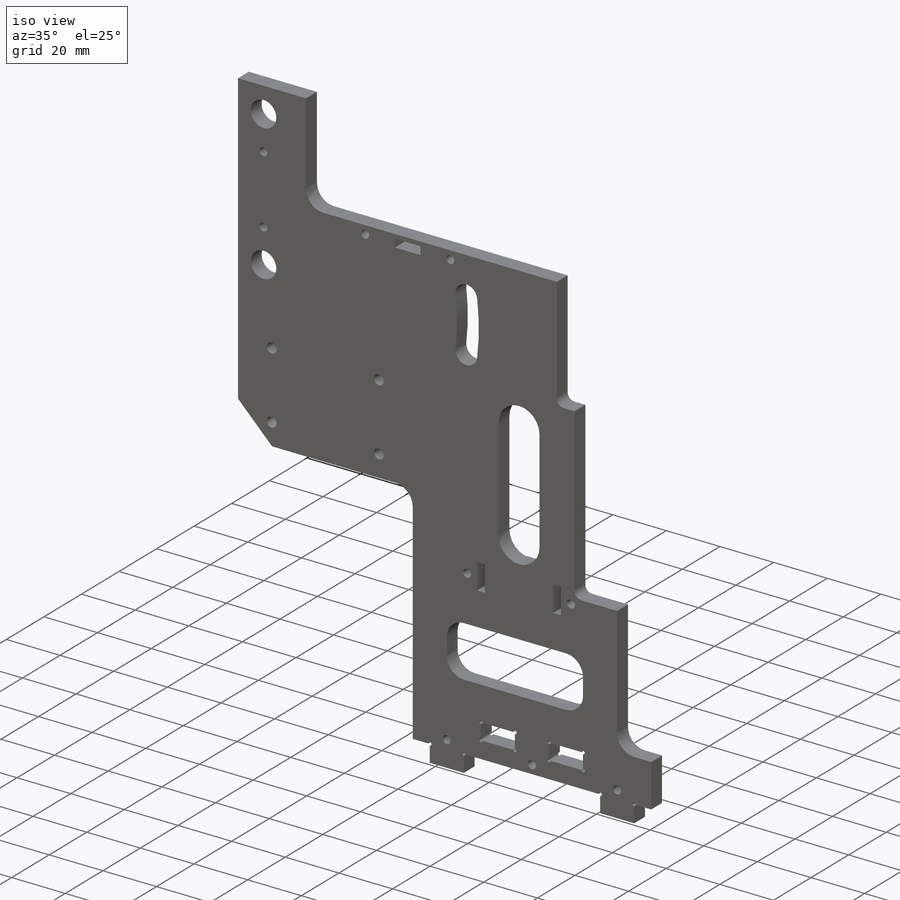
[diagram: iso view]
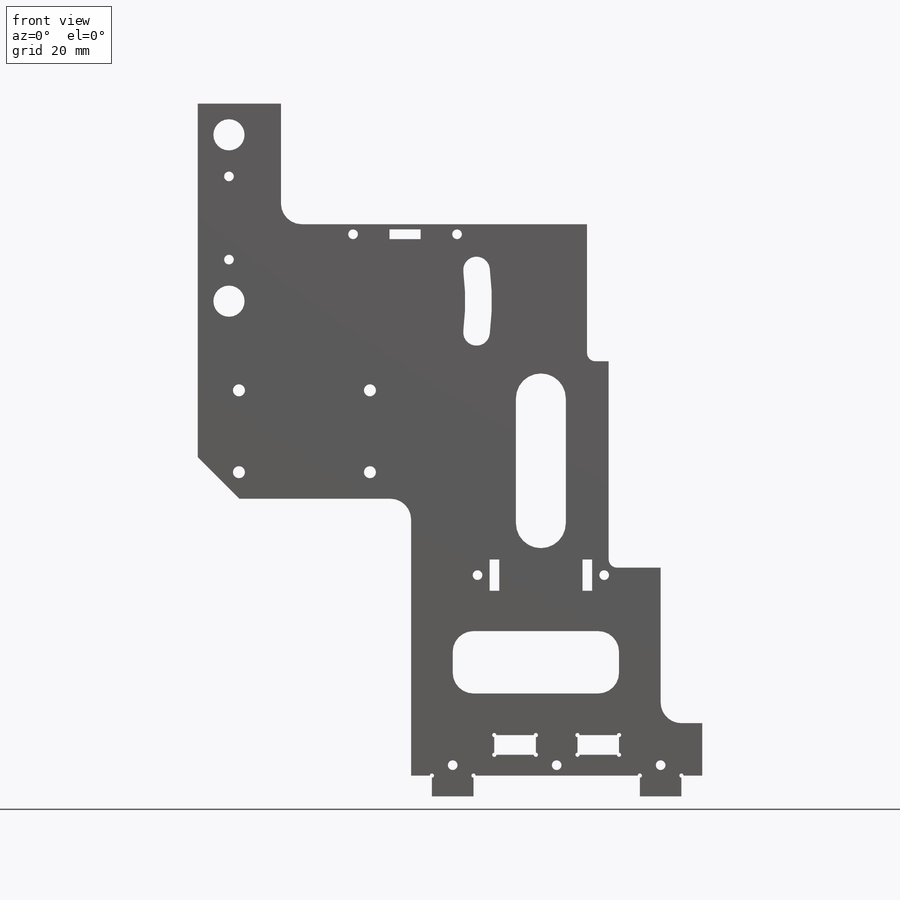
[diagram: front view]
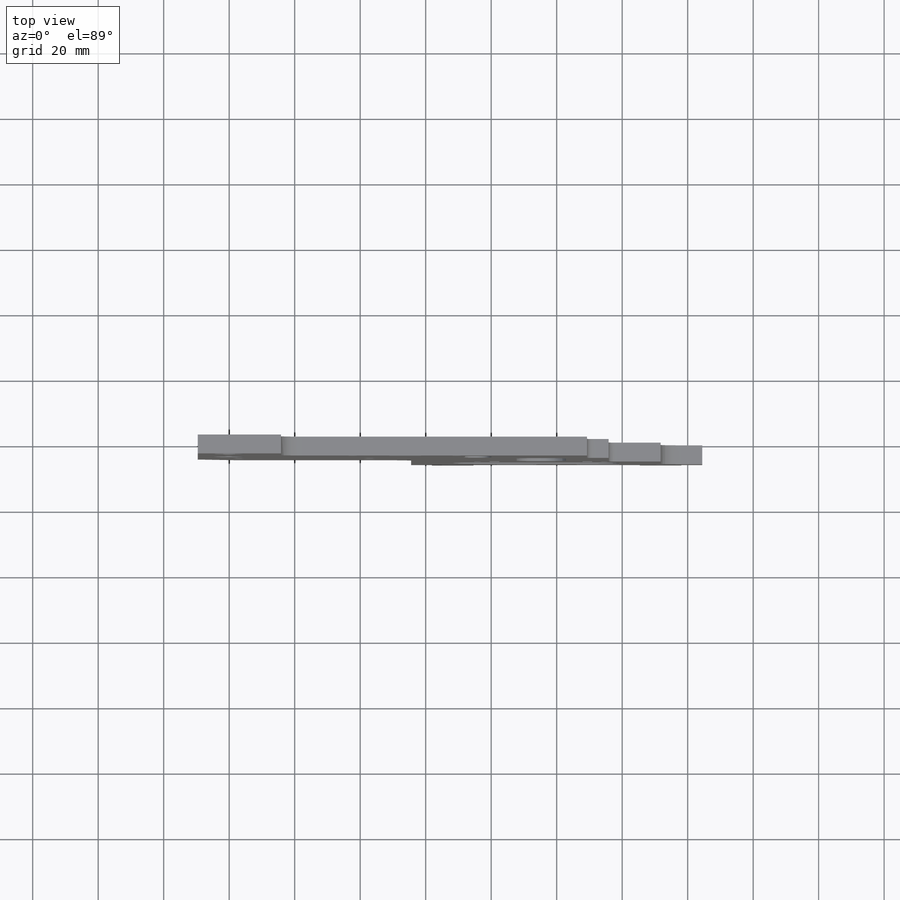
[diagram: top view]
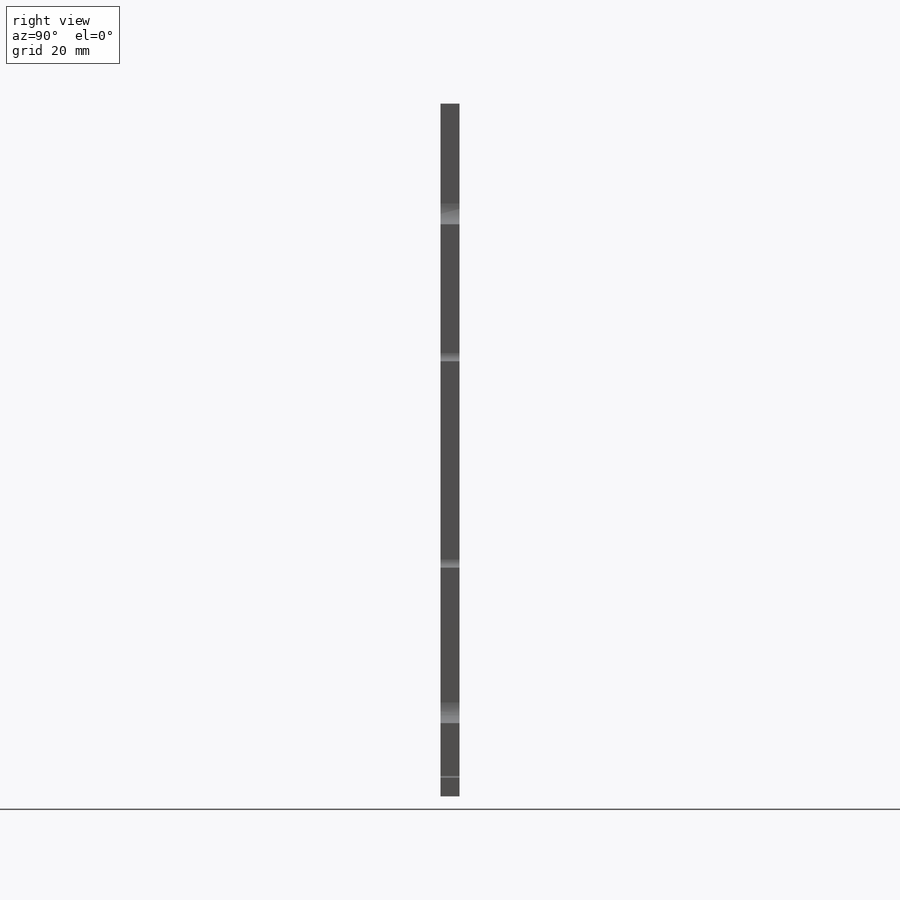
[diagram: right view]
SOLIDWORKS PART (.sldprt)
format: sldprt  version: not decoded by parser v0  size: 1,506,304 bytes
history: native  units: mm
features: sketch x23, cut_extrude x11, fillet x6, hole x4, chamfer x3, extrude x2, material x1 + 1 further entry (+12 scaffold rows collapsed)
feature tree (63):
  scaffold x12  (default folders/planes/origin — collapsed)
  material  "Acrylic (Medium-high impact)"
  sketch  "Sketch1"  dims[c1.D19=25.4mm c1.D20=1.27mm c1.D21=0.635mm c1.D13=9.525mm c2.D21=~40.566542mm c2.D1=6.35mm c2.D2=6.35mm c2.D3=12.7mm c2.D4=12.7mm c2.D5=50.8mm c2.D6=25.4mm c2.D7=25.4mm c2.D8=25.4mm c2.D9=31.75mm c2.D10=25.4mm c2.D11=25.4mm c2.D12=38.1mm c2.D13=38.1mm c2.D14=42.0mm c2.D15=42.0mm c2.D16=22.352mm c3.D6=38.1mm c3.D17=19.05mm c4.D6=6.35mm c4.D18=6.35mm c4.D21=25.4mm c4.D19=57.15mm c5.D6=6.35mm c5.D19=12.7mm c5.D21=6.0198mm c5.D22=3.175mm c5.D23=12.7mm c5.D24=6.35mm c5.D25=19.05mm c5.D26=6.35mm c5.D3=12.7mm c6.D6=6.35mm c6.D18=6.35mm c6.D20=6.0198mm c6.D19=6.35mm c6.D21=28.575mm c6.D27=12.7mm c6.D28=12.7mm c6.D29=25.4mm c6.D17=127.0mm c6.D30=6.35mm c6.D31=107.8738mm c6.D32=152.4mm c7.D17=195.326mm c7.D21=3.175mm c7.D22=50.8mm c8.D21=9.525mm c8.D23=9.525mm c8.D24=9.525mm c8.D25=50.8mm]
  extrude  "Boss-Extrude1"  Depth=5.7658mm
  sketch  "Sketch10"  dims[D1=1.27mm]
  sketch  "Sketch13"  dims[D1=1.27mm]
  cut_extrude  "Cut-Extrude2"  [1 undecoded]
  "Sketch-Pattern1"
  chamfer  "Chamfer1"  Distance=50.8mm Angle=45deg
  sketch  "Sketch5"  dims[D1=6.35mm D2=6.35mm D3=0.254mm]
  hole  "#4 Clearance Hole1"  Diameter=2.9464mm Depth=6.35mm
  sketch  "Sketch7"
  sketch  "Sketch6"  dims[hole-wizard template sketch: 50 standard entries collapsed; hole parameters above]
  hole  "3/8 (0.375) Diameter Hole1"  Diameter=9.525mm Depth=6.35mm
  sketch  "Sketch23"
  sketch  "Sketch22"  dims[hole-wizard template sketch: 47 standard entries collapsed; hole parameters kept: c15.Hole Depth=6.35mm c15.D3=~14.816244mm c15.Drill Angle=118.0deg]
  sketch  "Sketch24"  dims[D1=12.7mm]
  cut_extrude  "Cut-Extrude3"  [1 undecoded]
  fillet  "Fillet3"  Radius=6.35mm
  sketch  "Sketch25"  dims[c1.D1=203.2mm c1.D2=101.6mm c1.D3=101.6mm c2.D1=3.683mm c2.D4=3.683mm c2.D5=9.525mm c2.D3=4.064mm c3.D4=3.683mm c3.D5=101.6mm c3.D6=76.2mm c3.D1=114.3mm c3.D3=~10.35304mm c4.D1=6.35mm c4.D2=~103.411232mm c5.D1=~20.255382mm c5.D5=~10.35304mm c5.D6=~10.35304mm c6.D1=~10.35304mm c6.D2=~10.35304mm c6.D7=203.2mm c6.D8=50.8mm]
  cut_extrude  "Cut-Extrude4"  [1 undecoded]
  sketch  "Sketch26"  dims[D4=7.366mm D1=25.4mm D2=2.9591mm D3=9.525mm D5=4.826mm D6=61.214mm]
  cut_extrude  "Cut-Extrude5"  [1 undecoded]
  sketch  "Sketch29"  dims[D1=36.83mm D2=65.024mm]
  cut_extrude  "Cut-Extrude6"  [1 undecoded]
  fillet  "Fillet5"  Radius=6.35mm
  sketch  "Sketch30"  dims[c1.D1=~88.299103mm c2.D1=45.0deg c3.D1=63.5mm c3.D2=57.15mm c3.D3=49.53mm c4.D1=63.5mm c4.D4=50.8mm]
  extrude  "Boss-Extrude2"  [1 undecoded]
  fillet  "Fillet6"  Radius=6.35mm
  sketch  "Sketch31"  dims[D2=50.8mm D3=15.24mm D5=2.54mm D1=15.8623mm D4=6.35mm D6=38.1mm]
  sketch  "Sketch32"  dims[D1=9.525mm D2=2.9591mm D3=6.35mm D4=~0.79375mm]
  cut_extrude  "Cut-Extrude9"  [1 undecoded]
  hole  "#6 Clearance Hole1"  Diameter=3.6576mm Depth=5.842mm
  sketch  "Sketch34"  dims[c1.D1=40.0mm c1.D2=25.0mm c1.D3=25.0mm c1.D4=~18.829827mm c1.D5=25.0mm c2.D3=3.0mm]
  sketch  "Sketch33"  dims[hole-wizard template sketch: 47 standard entries collapsed; hole parameters kept: c15.Hole Depth=5.842mm c15.D3=~14.816244mm c15.Drill Angle=118.0deg]
  cut_extrude  "Cut-Extrude10"  [1 undecoded]
  chamfer  "Chamfer2"  Distance=19.05mm Angle=45deg
  chamfer  "Chamfer3"  Distance=12.7mm Angle=45deg
  sketch  "Sketch35"  dims[c1.D1=63.5mm c1.D2=6.35mm c1.D3=15.875mm c1.D4=76.2mm c1.D5=50.8mm c1.D6=50.8mm c2.D5=~7.388382mm]
  cut_extrude  "Cut-Extrude11"  [1 undecoded]
  sketch  "Sketch36"  dims[D1=25.4mm]
  cut_extrude  "Cut-Extrude12"  [1 undecoded]
  fillet  "Fillet7"  Radius=2.54mm
  fillet  "Fillet8"  Radius=6.35mm
  sketch  "Sketch37"  dims[c1.D1=~6.393198mm c1.D2=~16.836039mm c2.D1=9.525mm c2.D2=2.9591mm c2.D3=1.5875mm c2.D4=50.8mm]
  cut_extrude  "Cut-Extrude13"  [1 undecoded]
  hole  "#4 Clearance Hole2"  Diameter=2.9464mm Depth=5.7658mm
  sketch  "Sketch28"  dims[c1.D3=7.366mm c1.D4=7.366mm c1.D1=12.7mm c1.D2=12.7mm c2.D3=6.35mm c2.D5=9.525mm c2.D6=31.75mm c2.D4=6.35mm c3.D3=50.8mm c3.D4=3.175mm c3.D6=3.175mm c4.D4=31.75mm]
  sketch  "Sketch27"  dims[hole-wizard template sketch: 60 standard entries collapsed; hole parameters kept: c18.Thru Hole Depth=5.7658mm]
  sketch  "Sketch38"  dims[c1.D1=~12.787874mm c1.D2=~51.190335mm c2.D1=50.8mm c2.D2=19.05mm c2.D3=31.75mm]
  cut_extrude  "Cut-Extrude14"  [1 undecoded]
  fillet  "Fillet9"  Radius=6.35mm
decode coverage: 35 of 49 modeling features carry decoded parameters; 1 rows unclassified (native names shown)
note: ~ marks probable driven/reference dimensions
note: 12 parameter values undecoded
summary: no parameter record found for 12 features; Diameter pulled from absorbed wizard sketch
note: suppression state not decoded; provenance and decode notes live in map.json
